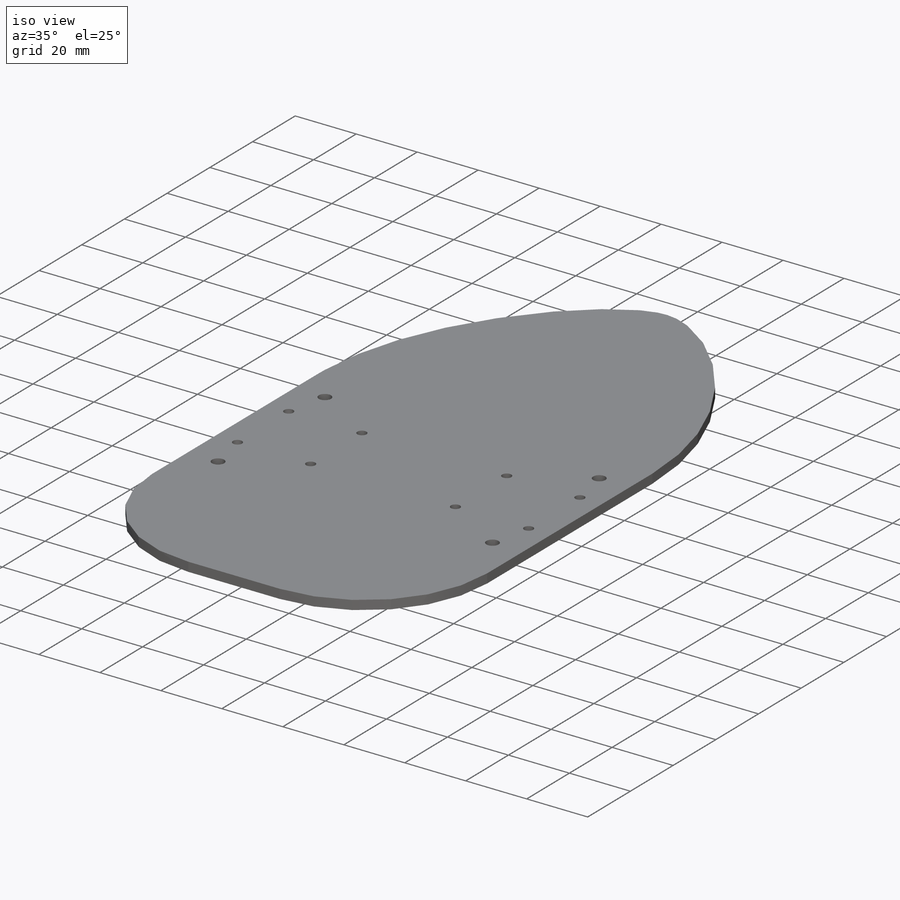
[diagram: iso view]
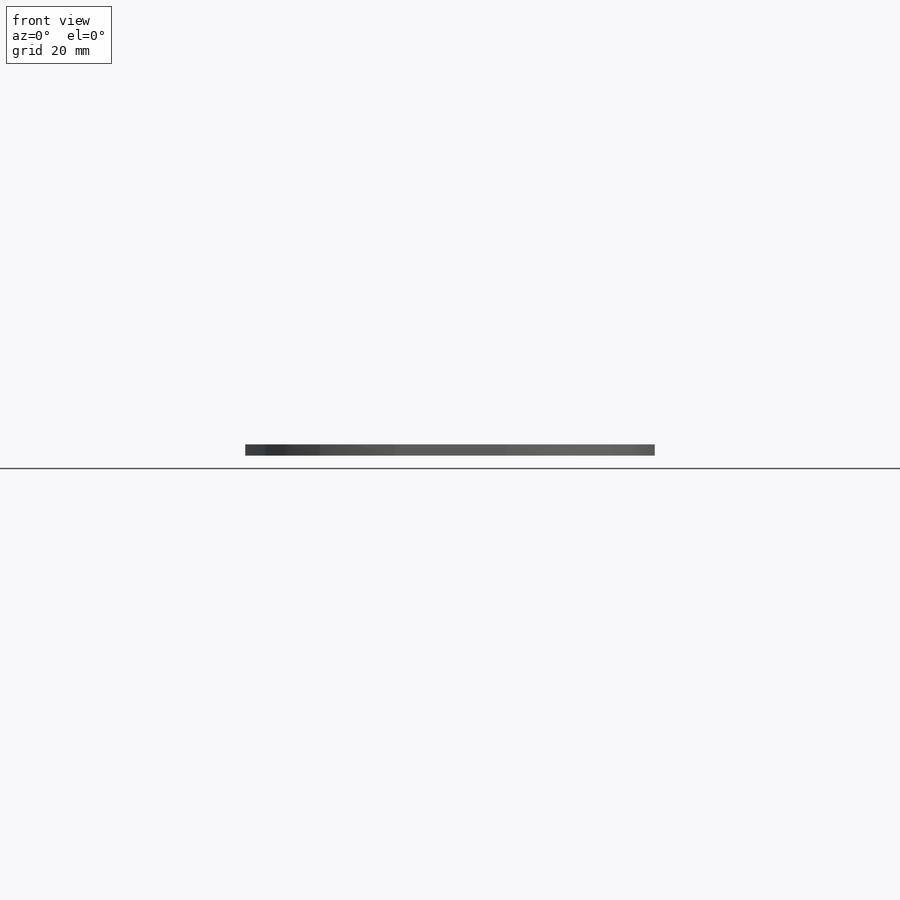
[diagram: front view]
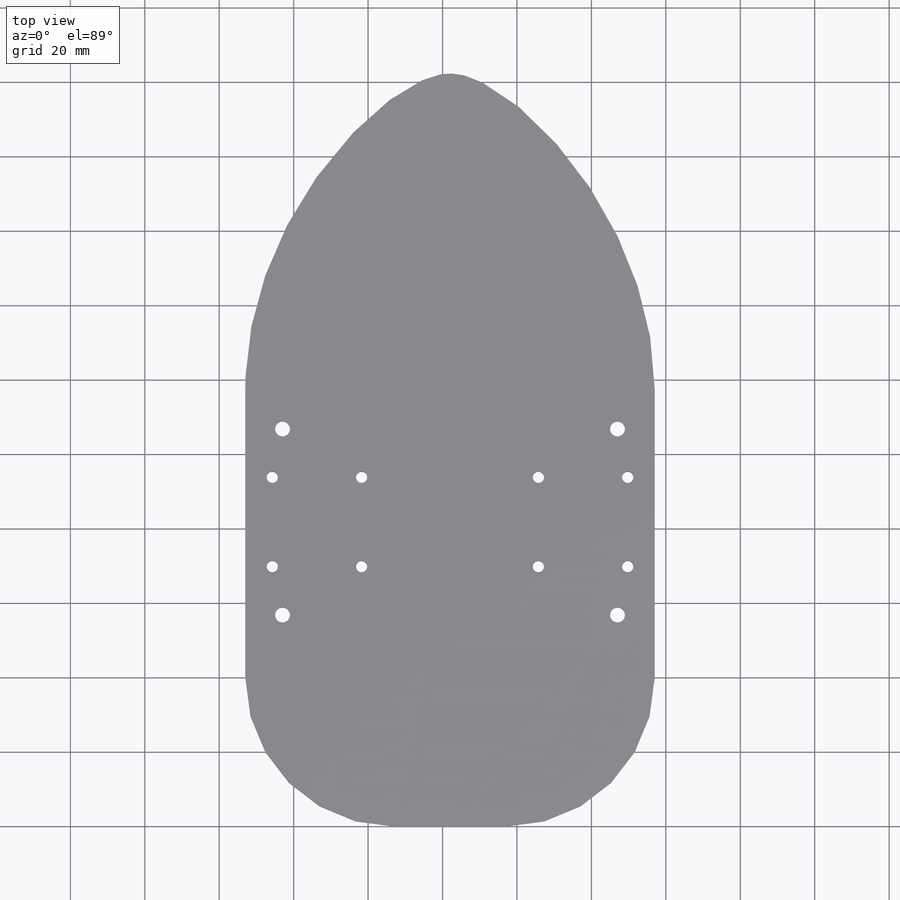
[diagram: top view]
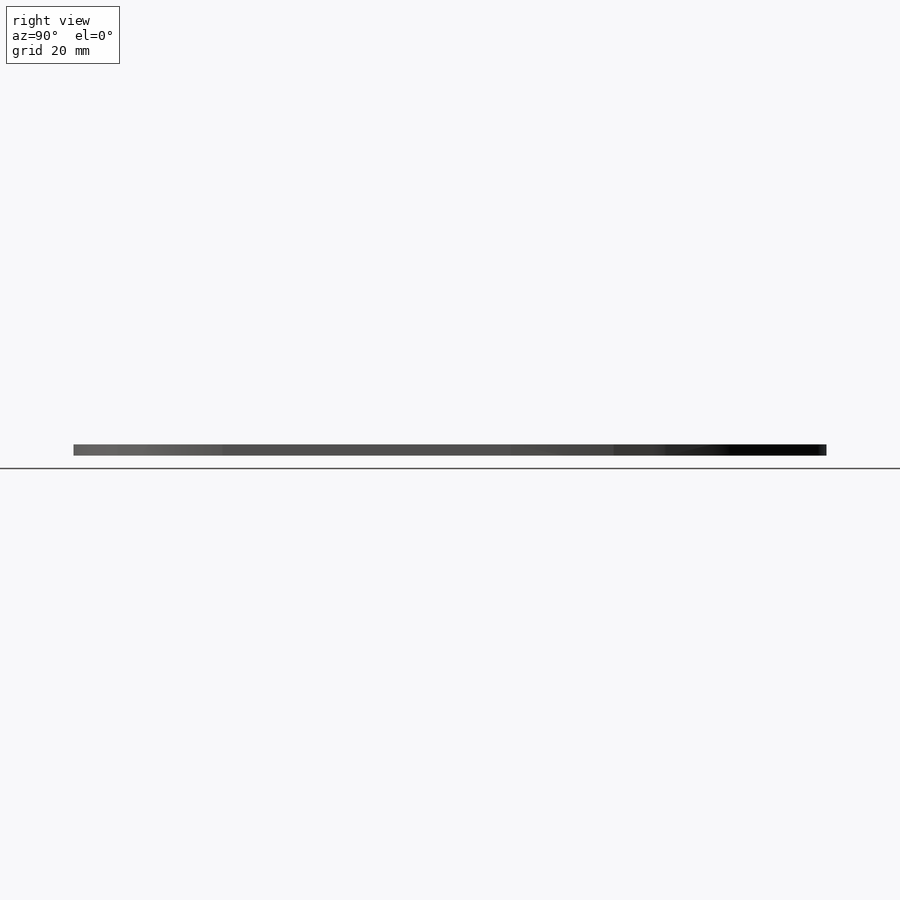
[diagram: right view]
SOLIDWORKS PART (.sldprt)
format: sldprt  version: not decoded by parser v0  size: 330,752 bytes
history: native  units: mm
features: sketch x12, sheet_metal_op x2, cut_extrude x2, hole x2, material x1 + 1 further entry (+11 scaffold rows collapsed; 1 parser-record rows omitted)
feature tree (32):
  scaffold x11  (default folders/planes/origin — collapsed)
  material  "Material <not specified>"
  sketch  "Sketch1"  dims[D1=14.18mm D2=110.0mm]
  sheet_metal_op  "Sheet-Metal1"
  sheet_metal_op  "Base-Flange1"
  sketch  "Horizontal Body centre line"
  sketch  "Horizontal Hole centre line"  dims[D1=10.0mm]
  sketch  "Vertical centre line"
  sketch  "Sketch3"  dims[D1=30.0mm D2=60.0mm]
  cut_extrude  "Extrude1"  [1 undecoded]
  hole  "Ø3.2 (3.2) Diameter Hole1"  Diameter=3.2mm Depth=3mm
  sketch  "Sketch8"  dims[D1=24.0mm D2=24.0mm D3=24.0mm D4=24.0mm D5=10.0mm D6=10.0mm D7=12.0mm D8=12.0mm]
  sketch  "Sketch7"  dims[hole-wizard template sketch: 60 standard entries collapsed; hole parameters kept: c18.Thru Hole Depth=3.0mm]
  sketch  "Sketch10"  dims[D5=4.0mm D1=50.0mm D2=25.0mm D3=10.0mm D4=10.0mm]
  cut_extrude  "Cut-Extrude1"  [1 undecoded]
  sketch  "Sketch11"
  hole  "M3x0.5 Tapped Hole1"  Diameter=3mm Depth=3mm
  sketch  "3DSketch1"
  sketch  "Sketch12"  dims[hole-wizard template sketch: 60 standard entries collapsed; hole parameters kept: c18.Thru Tap Drill Depth=3.0mm]
  "Flat-Pattern1"
  sketch  "Bend-Lines1"
  parser-record x1  (decoder bookkeeping rows leaked as tree rows — omitted from the tree; the rows remain in map.json)
decode coverage: 9 of 18 modeling features carry decoded parameters; 1 rows unclassified (native names shown)
note: ~ marks probable driven/reference dimensions
note: 2 parameter values undecoded
note: suppression state not decoded; provenance and decode notes live in map.json
